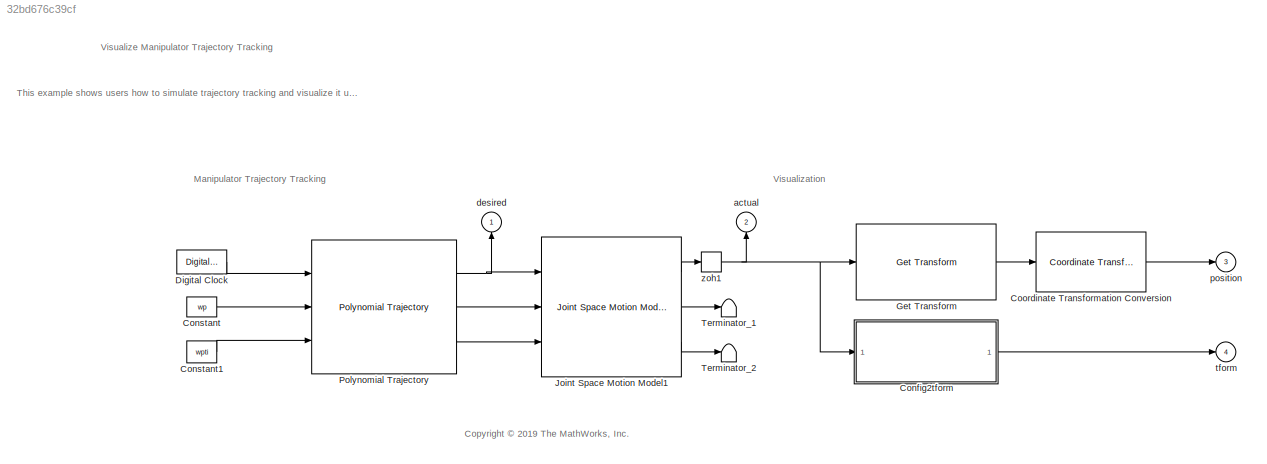
MODEL slx_32bd676c39cf
KIND model
CONFIG AbsTol = auto
CONFIG EnableMultiTasking = off
CONFIG FixedStep = auto
CONFIG MaxStep = auto
CONFIG MinStep = auto
CONFIG PreLoadFcn = t=load("trajectories.mat","t1");\ntraj=t.t1;\nwp=traj(:,2:8)';\nwpti=[traj(1,1) traj(end,1)];
CONFIG RelTol = 1e-3
CONFIG SampleTimeConstraint = Unconstrained
CONFIG SolverName = VariableStepAuto
CONFIG StartTime = 0.0
CONFIG StopTime = 50
WORKSPACE source: mxarray member
WORKSPACE gen3: robotics.RigidBodyTree (value not decoded)
WORKSPACE h = 0.1
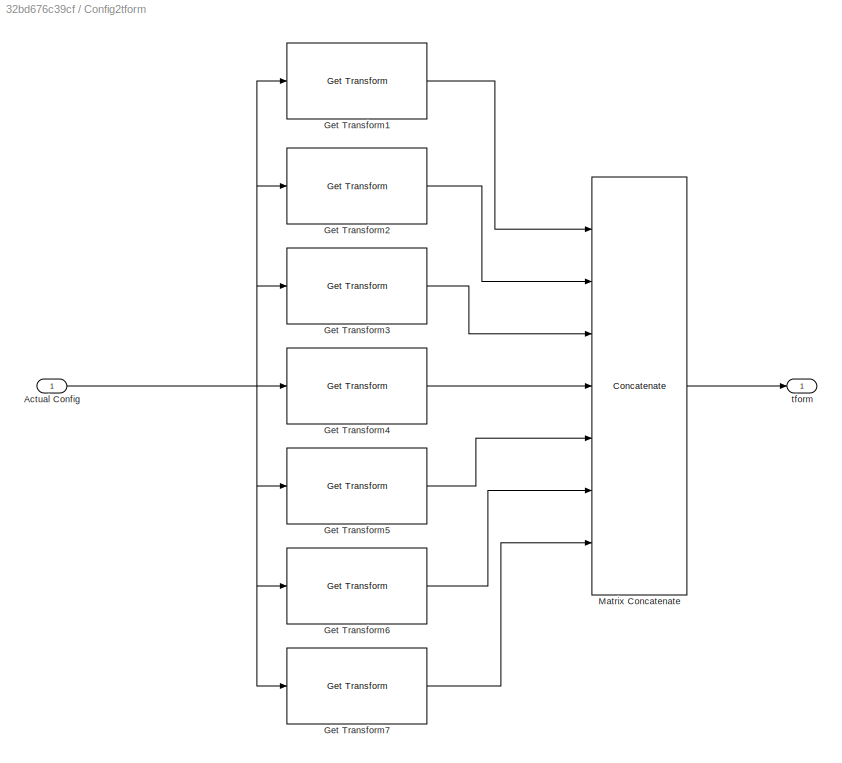
BLOCK [SubSystem] Config2tform
  Ports = [1, 1]
  RequestExecContextInheritance = off
BLOCK [Inport] Config2tform/Actual Config
BLOCK [Reference] Config2tform/Get Transform1  REF=robotmaniplib/Get Transform
  Ports = [1, 1]
  SourceBlock = robotmaniplib/Get Transform
  SourceProductBaseCode = RO
  SourceType = Get Transform
BLOCK [Reference] Config2tform/Get Transform2  REF=robotmaniplib/Get Transform
  Ports = [1, 1]
  SourceBlock = robotmaniplib/Get Transform
  SourceProductBaseCode = RO
  SourceType = Get Transform
BLOCK [Reference] Config2tform/Get Transform3  REF=robotmaniplib/Get Transform
  Ports = [1, 1]
  SourceBlock = robotmaniplib/Get Transform
  SourceProductBaseCode = RO
  SourceType = Get Transform
BLOCK [Reference] Config2tform/Get Transform4  REF=robotmaniplib/Get Transform
  Ports = [1, 1]
  SourceBlock = robotmaniplib/Get Transform
  SourceProductBaseCode = RO
  SourceType = Get Transform
BLOCK [Reference] Config2tform/Get Transform5  REF=robotmaniplib/Get Transform
  Ports = [1, 1]
  SourceBlock = robotmaniplib/Get Transform
  SourceProductBaseCode = RO
  SourceType = Get Transform
BLOCK [Reference] Config2tform/Get Transform6  REF=robotmaniplib/Get Transform
  Ports = [1, 1]
  SourceBlock = robotmaniplib/Get Transform
  SourceProductBaseCode = RO
  SourceType = Get Transform
BLOCK [Reference] Config2tform/Get Transform7  REF=robotmaniplib/Get Transform
  Ports = [1, 1]
  SourceBlock = robotmaniplib/Get Transform
  SourceProductBaseCode = RO
  SourceType = Get Transform
BLOCK [Concatenate] Config2tform/Matrix Concatenate
  Mode = Multidimensional array
  NumInputs = 7
  Ports = [7, 1]
BLOCK [Outport] Config2tform/tform
BLOCK [Constant] Constant
  Value = wp
BLOCK [Constant] Constant1
  Value = wpti
BLOCK [Reference] Coordinate Transformation Conversion  REF=robotcorelib/Coordinate Transformation Conversion
  Ports = [1, 1]
  SourceBlock = robotcorelib/Coordinate Transformation Conversion
  SourceProductBaseCode = NV,RO,RR,UV
  SourceType = robotics.slcore.internal.block.CoordinateTransformationConversion
BLOCK [DigitalClock] Digital Clock
  SampleTime = h
BLOCK [Reference] Get Transform  REF=robotmaniplib/Get Transform
  Ports = [1, 1]
  SourceBlock = robotmaniplib/Get Transform
  SourceProductBaseCode = RO
  SourceType = Get Transform
BLOCK [Reference] Joint Space Motion Model1  REF=robotmaniplib/Joint Space Motion Model
  Ports = [3, 3]
  SourceBlock = robotmaniplib/Joint Space Motion Model
  SourceProductBaseCode = RO
  SourceType = Joint Space Motion Model
BLOCK [Reference] Polynomial Trajectory  REF=robotcorelib/Polynomial Trajectory
  Ports = [3, 3]
  SourceBlock = robotcorelib/Polynomial Trajectory
  SourceProductBaseCode = NV,RO,RR,UV
  SourceType = robotics.slcore.internal.block.PolyTrajSys
BLOCK [Terminator] Terminator_1
BLOCK [Terminator] Terminator_2
BLOCK [Outport] actual
  NameLocation = top
  Port = 2
BLOCK [Outport] desired
  NameLocation = top
BLOCK [Outport] position
  Port = 3
BLOCK [Outport] tform
  Port = 4
BLOCK [ZeroOrderHold] zoh1
  NameLocation = top
  SampleTime = h
ANNOTATION (root): <copyright redacted>
ANNOTATION (root): This example shows users how to simulate trajectory tracking and visualize it using Simulink 3D Animation ™ . The model uses the polynomial trajectory block to interpolate five discrete sets of configurations and create continuous trajectories in the configuration space. The Joint Space Motion Model simulates the behavior of a robot under motion control and executes the trajectories.
ANNOTATION (root): Visualize Manipulator Trajectory Tracking
ANNOTATION (root): Manipulator Trajectory Tracking
ANNOTATION (root): Visualization
NET Config2tform/Actual Config:1 -> Config2tform/Get Transform1:1, Config2tform/Get Transform2:1, Config2tform/Get Transform3:1, Config2tform/Get Transform4:1, Config2tform/Get Transform5:1, Config2tform/Get Transform6:1, Config2tform/Get Transform7:1
LINE Config2tform/Get Transform1:1 -> Config2tform/Matrix Concatenate:1
LINE Config2tform/Get Transform2:1 -> Config2tform/Matrix Concatenate:2
LINE Config2tform/Get Transform3:1 -> Config2tform/Matrix Concatenate:3
LINE Config2tform/Get Transform4:1 -> Config2tform/Matrix Concatenate:4
LINE Config2tform/Get Transform5:1 -> Config2tform/Matrix Concatenate:5
LINE Config2tform/Get Transform6:1 -> Config2tform/Matrix Concatenate:6
LINE Config2tform/Get Transform7:1 -> Config2tform/Matrix Concatenate:7
LINE Config2tform/Matrix Concatenate:1 -> Config2tform/tform:1
LINE Config2tform:1 -> tform:1
LINE Constant1:1 -> Polynomial Trajectory:3
LINE Constant:1 -> Polynomial Trajectory:2
LINE Coordinate Transformation Conversion:1 -> position:1
LINE Digital Clock:1 -> Polynomial Trajectory:1
LINE Get Transform:1 -> Coordinate Transformation Conversion:1
LINE Joint Space Motion Model1:1 -> zoh1:1
LINE Joint Space Motion Model1:2 -> Terminator_1:1
LINE Joint Space Motion Model1:3 -> Terminator_2:1
NET Polynomial Trajectory:1 -> Joint Space Motion Model1:1, desired:1
LINE Polynomial Trajectory:2 -> Joint Space Motion Model1:2
LINE Polynomial Trajectory:3 -> Joint Space Motion Model1:3
NET zoh1:1 -> Config2tform:1, Get Transform:1, actual:1
note: NET lines group one-source signal fan-out (src -> all destinations, sorted); 1:1 wires keep LINE
